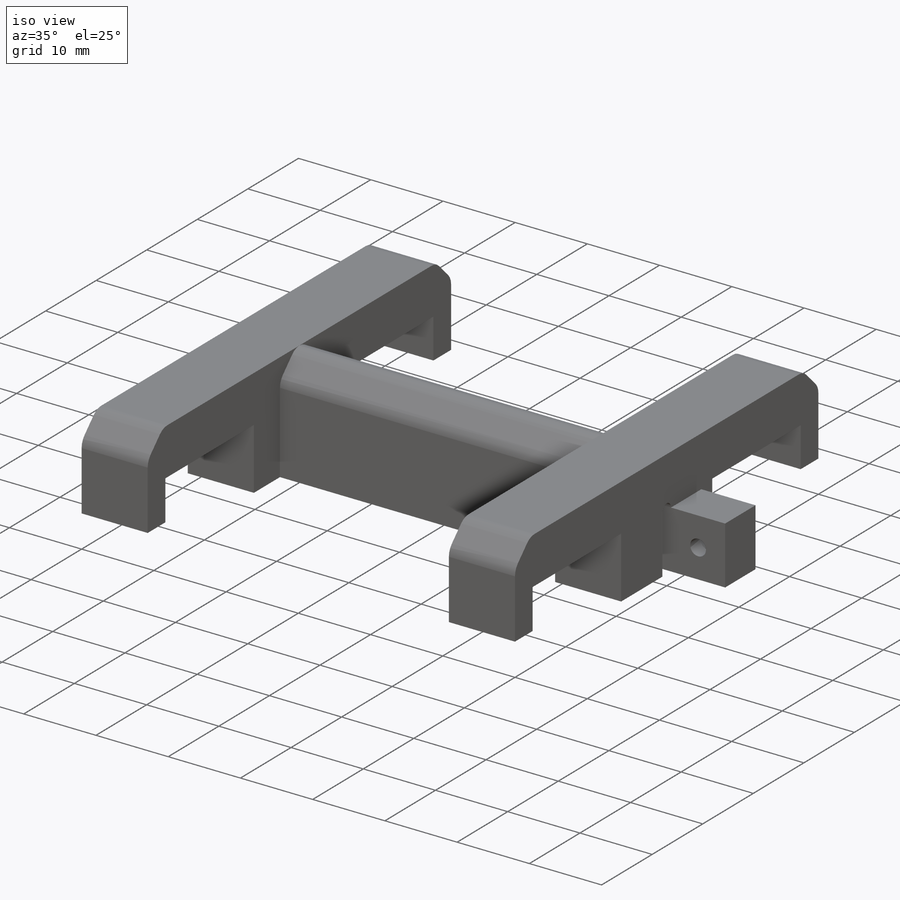
[diagram: iso view]
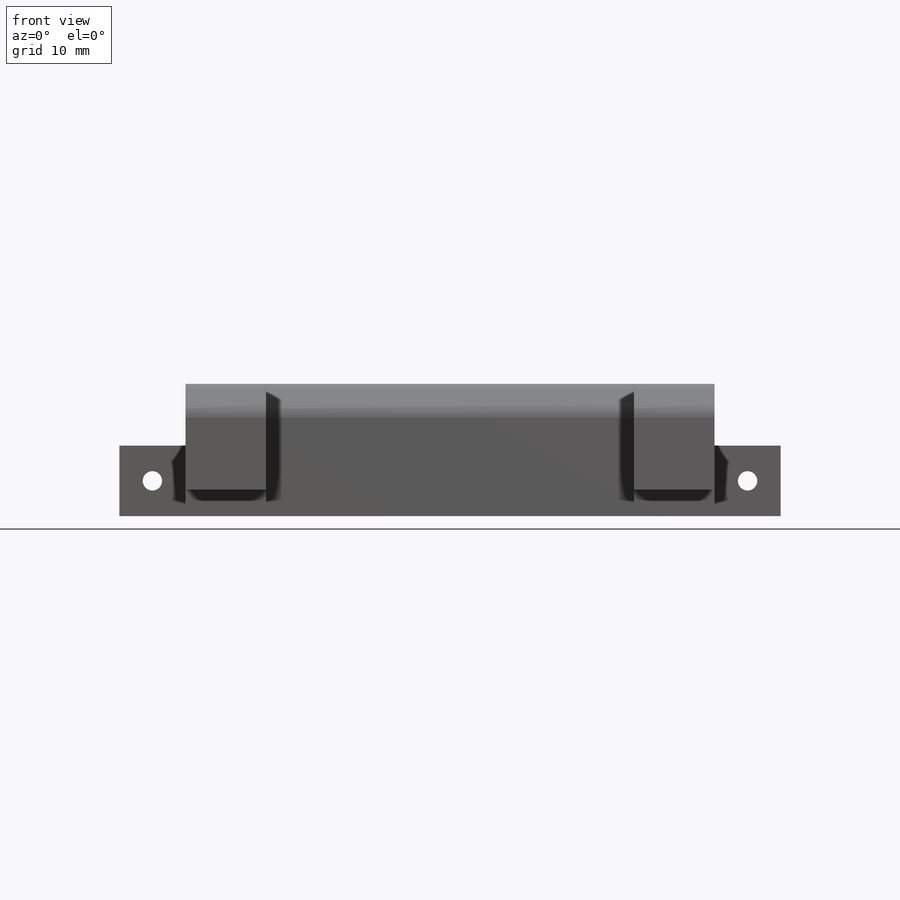
[diagram: front view]
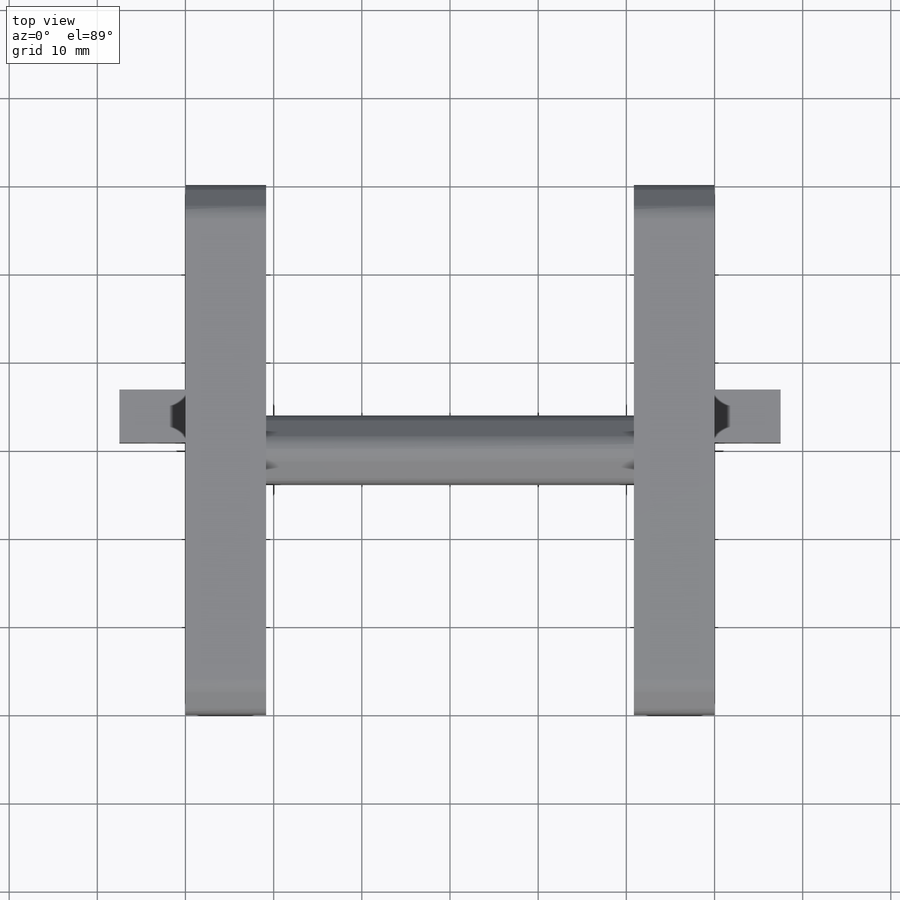
[diagram: top view]
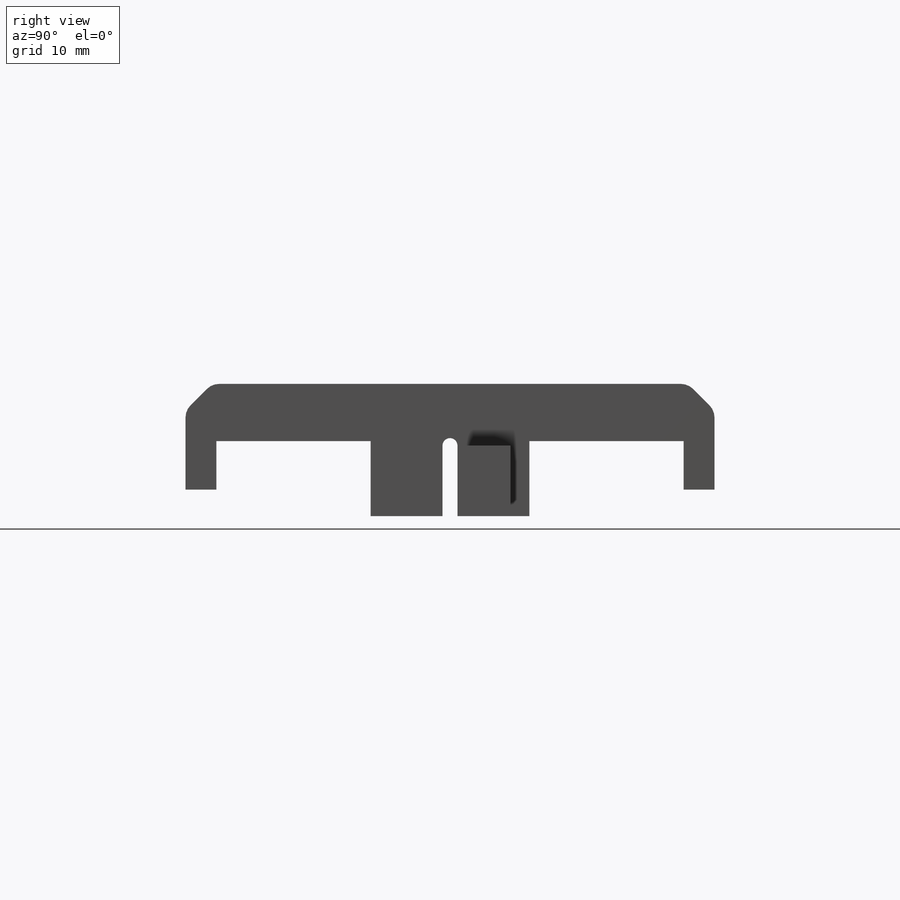
[diagram: right view]
SOLIDWORKS PART (.sldprt)
format: sldprt  version: not decoded by parser v0  size: 446,464 bytes
history: native  units: mm
features: sketch x14, cut_extrude x9, extrude x3, mirror x3, material x1, chamfer x1, fillet x1, hole x1 (+12 scaffold rows collapsed)
feature tree (45):
  scaffold x12  (default folders/planes/origin — collapsed)
  material  "ABS"
  sketch  "Sketch1"  dims[D1=60.0mm D2=15.0mm]
  extrude  "Boss-Extrude1"  Depth=60mm
  sketch  "Sketch2"  dims[D1=1.7mm]
  cut_extrude  "Cut-Extrude1"  Depth=8mm
  sketch  "Sketch3"  dims[D1=11.2mm D2=1.8mm D3=22.5mm]
  cut_extrude  "Cut-Extrude2"  Depth=8.5mm
  sketch  "Sketch4"  dims[D1=24.0mm]
  cut_extrude  "Cut-Extrude3"  Depth=3mm
  sketch  "Sketch5"  dims[D1=41.7mm]
  cut_extrude  "Cut-Extrude4"  Depth=27mm
  sketch  "Sketch6"
  cut_extrude  "Cut-Extrude5"  [1 undecoded]
  sketch  "Sketch7"  dims[D1=17.5mm]
  cut_extrude  "Cut-Extrude6"  Depth=25mm
  mirror  "Mirror1"
  sketch  "Sketch9"
  extrude  "Boss-Extrude2"  Depth=5mm
  sketch  "Sketch10"  dims[D1=3.0mm]
  cut_extrude  "Cut-Extrude7"  Depth=23mm
  mirror  "Mirror2"
  chamfer  "Chamfer1"  Distance=3mm Angle=45deg
  fillet  "Fillet1"  Radius=2mm
  sketch  "Sketch11"  dims[D1=75.0mm]
  extrude  "Boss-Extrude3"  Depth=6mm
  sketch  "Sketch12"  dims[D1=3.8mm]
  cut_extrude  "Cut-Extrude8"  Depth=4mm
  hole  "M2 Clearance Hole1"  Diameter=2.2mm Depth=10mm
  sketch  "Sketch15"
  sketch  "Sketch14"  dims[hole-wizard template sketch: 47 standard entries collapsed; hole parameters kept: c15.Hole Depth=10.0mm c15.D3=~14.816244mm c15.Drill Angle=180.0deg]
  mirror  "Mirror3"
  sketch  "Sketch16"
  cut_extrude  "Cut-Extrude9"  Depth=81mm
decode coverage: 24 of 32 modeling features carry decoded parameters
note: ~ marks probable driven/reference dimensions
note: 1 parameter value undecoded
note: suppression state not decoded; provenance and decode notes live in map.json
